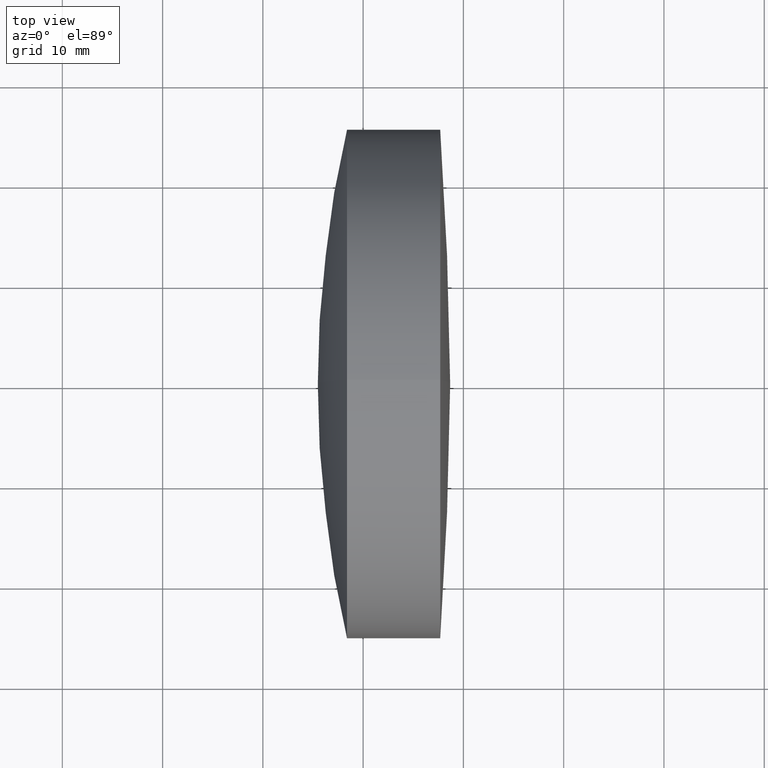
[diagram: clean part render]
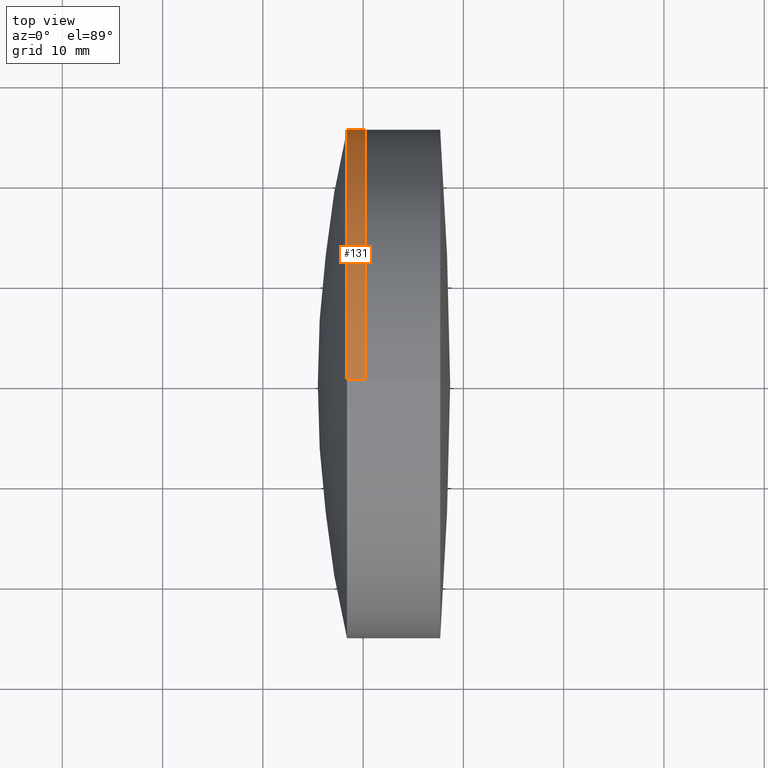
[diagram: same view with one face highlighted and labeled with its STEP entity id]
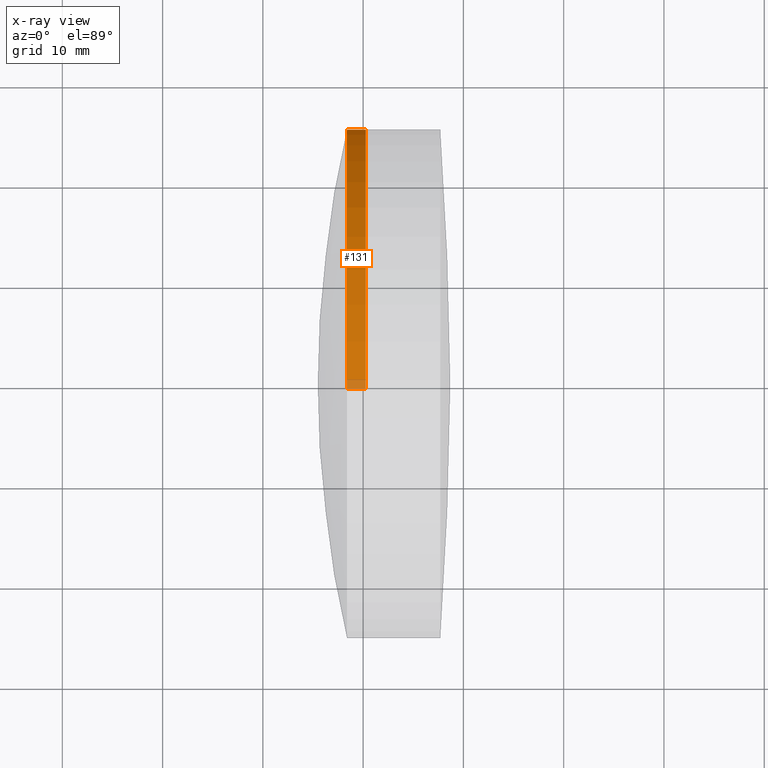
[diagram: x-ray of the same camera — body ghosted, the highlighted face saturated]
A machine part, top view. The second image highlights one B-rep face of the part: STEP entity #131.
The next image is the same camera in x-ray: the body ghosted, the highlighted face saturated — about 3% of this face is hidden behind the body in this view.
In plain terms, the highlighted cylindrical surface (partial cylindrical patch) has radius 25.4 mm, axis along (-1, -0, -0).
Its self-contained STEP definition (entity closure, byte-faithful):
#2 = ORIENTED_EDGE ( 'NONE', *, *, #297, .F. ) ;
#3 = CARTESIAN_POINT ( 'NONE',  ( 124.5233095260452400, 3.110602869834276100E-015, -25.39999999999999100 ) ) ;
#6 = EDGE_LOOP ( 'NONE', ( #318, #256, #2, #66 ) ) ;
#12 = CARTESIAN_POINT ( 'NONE',  ( 550.2556910666054400, 0.0000000000000000000, 0.0000000000000000000 ) ) ;
#13 = AXIS2_PLACEMENT_3D ( 'NONE', #343, #135, #202 ) ;
#36 = VECTOR ( 'NONE', #149, 1000.000000000000000 ) ;
#42 = CYLINDRICAL_SURFACE ( 'NONE', #204, 25.39999999999999100 ) ;
#60 = LINE ( 'NONE', #3, #273 ) ;
#66 = ORIENTED_EDGE ( 'NONE', *, *, #198, .F. ) ;
#69 = CARTESIAN_POINT ( 'NONE',  ( 550.2556910666054400, 3.110602869834276100E-015, -25.39999999999999100 ) ) ;
#81 = VERTEX_POINT ( 'NONE', #226 ) ;
#113 = VERTEX_POINT ( 'NONE', #69 ) ;
#117 = VERTEX_POINT ( 'NONE', #258 ) ;
#127 = CIRCLE ( 'NONE', #336, 25.39999999999999100 ) ;
#131 = ADVANCED_FACE ( 'NONE', ( #301 ), #42, .T. ) ;
#135 = DIRECTION ( 'NONE',  ( -1.000000000000000000, -0.0000000000000000000, -0.0000000000000000000 ) ) ;
#149 = DIRECTION ( 'NONE',  ( -1.000000000000000000, -0.0000000000000000000, -0.0000000000000000000 ) ) ;
#150 = LINE ( 'NONE', #305, #36 ) ;
#171 = CARTESIAN_POINT ( 'NONE',  ( 124.5233095260452400, 0.0000000000000000000, 0.0000000000000000000 ) ) ;
#172 = DIRECTION ( 'NONE',  ( -1.000000000000000000, -0.0000000000000000000, -0.0000000000000000000 ) ) ;
#179 = EDGE_CURVE ( 'NONE', #113, #117, #60, .T. ) ;
#198 = EDGE_CURVE ( 'NONE', #260, #81, #150, .T. ) ;
#202 = DIRECTION ( 'NONE',  ( 0.0000000000000000000, 0.0000000000000000000, 1.000000000000000000 ) ) ;
#204 = AXIS2_PLACEMENT_3D ( 'NONE', #171, #249, #331 ) ;
#211 = CARTESIAN_POINT ( 'NONE',  ( 550.2556910666054400, 0.0000000000000000000, 25.39999999999999100 ) ) ;
#226 = CARTESIAN_POINT ( 'NONE',  ( 548.3934145591277900, 0.0000000000000000000, 25.39999999999999100 ) ) ;
#231 = EDGE_CURVE ( 'NONE', #260, #113, #127, .T. ) ;
#233 = DIRECTION ( 'NONE',  ( -1.000000000000000000, -0.0000000000000000000, -0.0000000000000000000 ) ) ;
#234 = DIRECTION ( 'NONE',  ( 0.0000000000000000000, 0.0000000000000000000, 1.000000000000000000 ) ) ;
#249 = DIRECTION ( 'NONE',  ( -1.000000000000000000, -0.0000000000000000000, -0.0000000000000000000 ) ) ;
#256 = ORIENTED_EDGE ( 'NONE', *, *, #179, .T. ) ;
#258 = CARTESIAN_POINT ( 'NONE',  ( 548.3934145591277900, 3.110602869834276500E-015, -25.40000000000000600 ) ) ;
#260 = VERTEX_POINT ( 'NONE', #211 ) ;
#273 = VECTOR ( 'NONE', #172, 1000.000000000000000 ) ;
#283 = CIRCLE ( 'NONE', #13, 25.39999999999998800 ) ;
#297 = EDGE_CURVE ( 'NONE', #81, #117, #283, .T. ) ;
#301 = FACE_OUTER_BOUND ( 'NONE', #6, .T. ) ;
#305 = CARTESIAN_POINT ( 'NONE',  ( 124.5233095260452400, 0.0000000000000000000, 25.39999999999999100 ) ) ;
#318 = ORIENTED_EDGE ( 'NONE', *, *, #231, .T. ) ;
#331 = DIRECTION ( 'NONE',  ( 0.0000000000000000000, 0.0000000000000000000, 1.000000000000000000 ) ) ;
#336 = AXIS2_PLACEMENT_3D ( 'NONE', #12, #233, #234 ) ;
#343 = CARTESIAN_POINT ( 'NONE',  ( 548.3934145591277900, 0.0000000000000000000, 0.0000000000000000000 ) ) ;